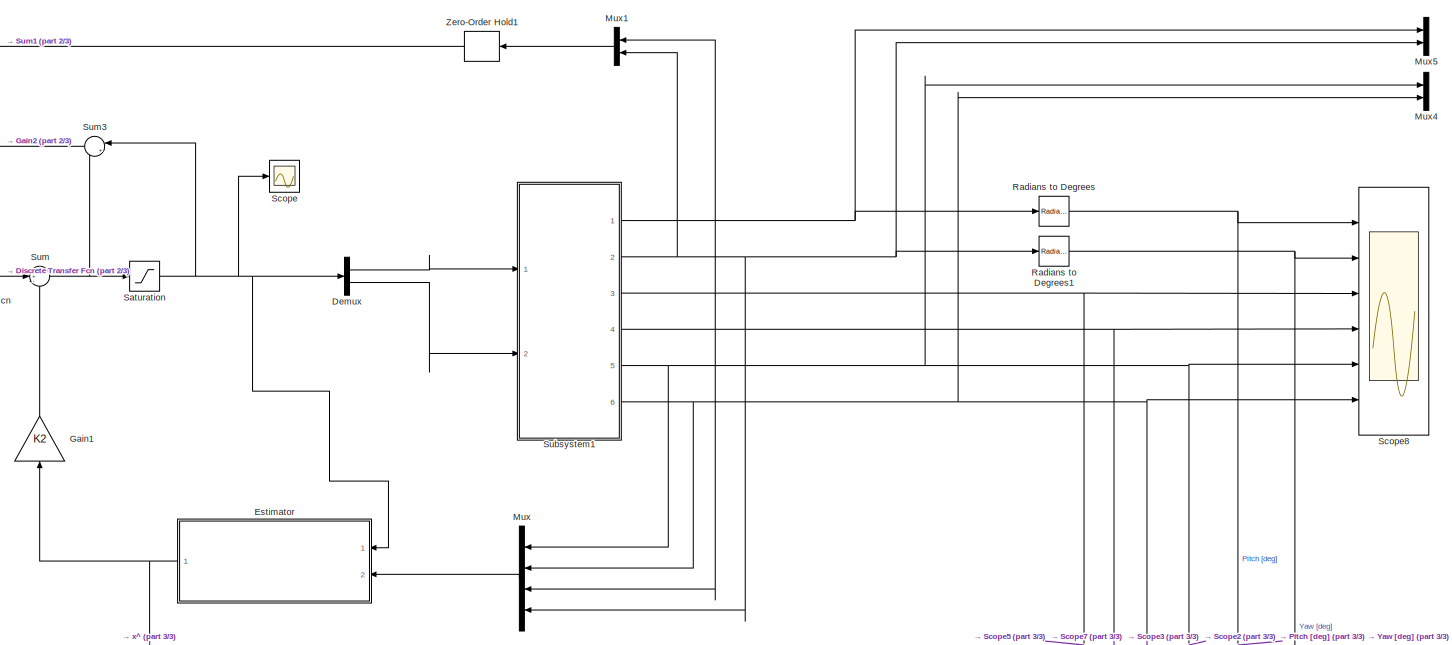
[diagram: root canvas - part 1/3, top center region]
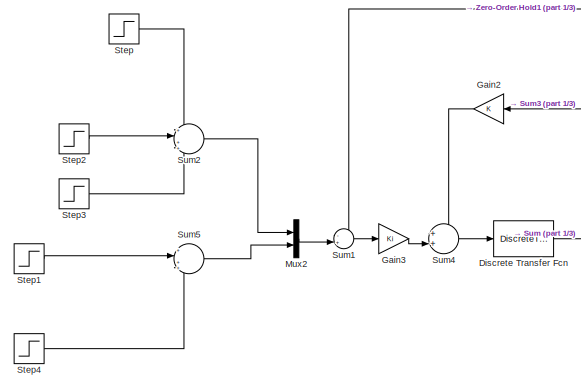
[diagram: root canvas - part 2/3, top left region]
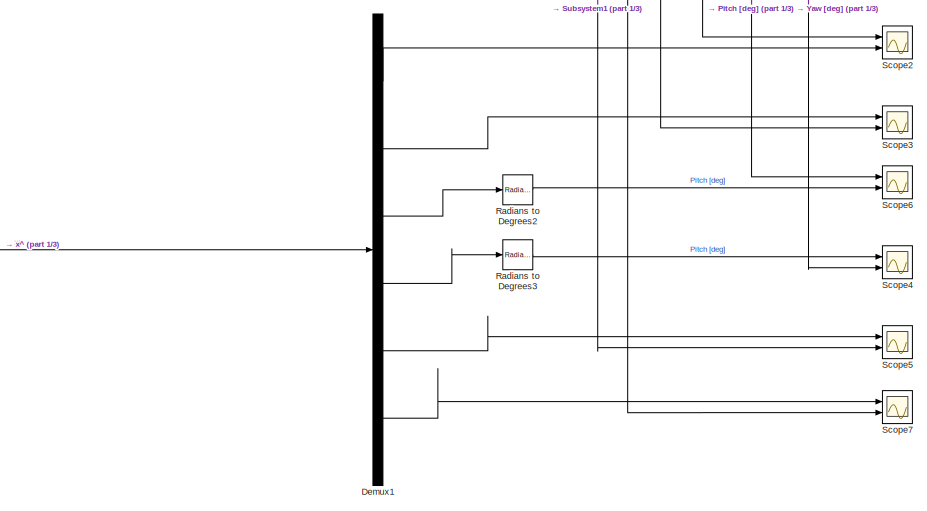
[diagram: root canvas - part 3/3, bottom right region]
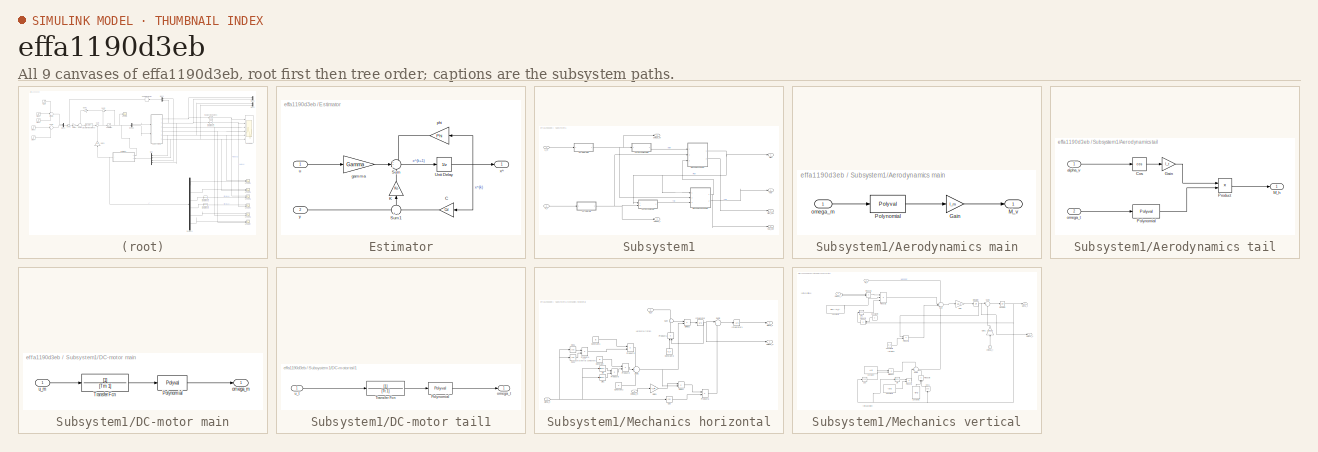
[diagram: thumbnail index - all 9 canvases of the model, root first then tree order]
MODEL slx_effa1190d3eb
KIND model
CONFIG AbsTol = auto
CONFIG EnableMultiTasking = off
CONFIG FixedStep = auto
CONFIG MaxStep = auto
CONFIG MinStep = auto
CONFIG RelTol = 1e-3
CONFIG SampleTimeConstraint = Unconstrained
CONFIG Solver = VariableStepAuto
CONFIG SolverName = VariableStepAuto
CONFIG StartTime = 0.0
CONFIG StopTime = 100
BLOCK [Demux] Demux
  Outputs = 2
  Ports = [1, 2]
BLOCK [Demux] Demux1
  Outputs = 6
  Ports = [1, 6]
BLOCK [DiscreteTransferFcn] Discrete Transfer Fcn
  Denominator = [1 -1]
  InputPortMap = u0
  Ports = [1, 1]
  SampleTime = Ts
BLOCK [SubSystem] Estimator
  Ports = [2, 1]
  RequestExecContextInheritance = off
BLOCK [Gain] Estimator/C
  Gain = Cd
  Multiplication = Matrix(K*u)
  OutDataTypeStr = Inherit: Same as input
  ParamDataTypeStr = Inherit: Same as input
  SaturateOnIntegerOverflow = on
BLOCK [Gain] Estimator/K
  Gain = Ko
  Multiplication = Matrix(K*u)
  OutDataTypeStr = Inherit: Same as input
  ParamDataTypeStr = Inherit: Same as input
  SaturateOnIntegerOverflow = on
BLOCK [Sum] Estimator/Sum
  Inputs = +++
  Ports = [3, 1]
  SaturateOnIntegerOverflow = on
BLOCK [Sum] Estimator/Sum1
  Inputs = +-
  Ports = [2, 1]
  SaturateOnIntegerOverflow = on
BLOCK [UnitDelay] Estimator/Unit Delay
  SampleTime = Ts
BLOCK [Gain] Estimator/gamma
  Gain = Gamma
  Multiplication = Matrix(K*u)
  OutDataTypeStr = Inherit: Same as input
  ParamDataTypeStr = Inherit: Same as input
  SaturateOnIntegerOverflow = on
BLOCK [Gain] Estimator/phi
  Gain = Phi
  Multiplication = Matrix(K*u)
  OutDataTypeStr = Inherit: Same as input
  ParamDataTypeStr = Inherit: Same as input
  SaturateOnIntegerOverflow = on
BLOCK [Inport] Estimator/u
BLOCK [Outport] Estimator/x^
BLOCK [Inport] Estimator/y
  Port = 2
BLOCK [Gain] Gain1
  Gain = K2
  Multiplication = Matrix(K*u) (u vector)
BLOCK [Gain] Gain2
BLOCK [Gain] Gain3
  Gain = Ki
  Multiplication = Matrix(K*u) (u vector)
BLOCK [Mux] Mux
  DisplayOption = bar
  Ports = [4, 1]
BLOCK [Mux] Mux1
  DisplayOption = bar
  Inputs = 2
  Ports = [2, 1]
BLOCK [Mux] Mux2
  DisplayOption = bar
  Inputs = 2
  Ports = [2, 1]
BLOCK [Mux] Mux4
  DisplayOption = bar
  Inputs = 2
  Ports = [2, 1]
BLOCK [Mux] Mux5
  DisplayOption = bar
  Inputs = 2
  Ports = [2, 1]
BLOCK [Reference] Radians to Degrees  REF=simulink_extras/Transformations/Radians
to Degrees
  Ports = [1, 1]
  SourceBlock = simulink_extras/Transformations/Radians\nto Degrees
  SourceProductBaseCode = SL
  SourceType = RadiansToDegrees
BLOCK [Reference] Radians to Degrees1  REF=simulink_extras/Transformations/Radians
to Degrees
  Ports = [1, 1]
  SourceBlock = simulink_extras/Transformations/Radians\nto Degrees
  SourceProductBaseCode = SL
  SourceType = RadiansToDegrees
BLOCK [Reference] Radians to Degrees2  REF=simulink_extras/Transformations/Radians
to Degrees
  Ports = [1, 1]
  SourceBlock = simulink_extras/Transformations/Radians\nto Degrees
  SourceProductBaseCode = SL
  SourceType = RadiansToDegrees
BLOCK [Reference] Radians to Degrees3  REF=simulink_extras/Transformations/Radians
to Degrees
  Ports = [1, 1]
  SourceBlock = simulink_extras/Transformations/Radians\nto Degrees
  SourceProductBaseCode = SL
  SourceType = RadiansToDegrees
BLOCK [Saturate] Saturation
  LowerLimit = -18
  UpperLimit = 18
BLOCK [Scope] Scope
  Floating = off
  NumInputPorts = 1
  Ports = [1]
  ScopeSpecificationString = Simulink.scopes.TimeScopeBlockCfg('CurrentConfiguration', extmgr.ConfigurationSet(extmgr.Configuration('Core','General UI',true),extmgr.Configuration('Core','Source UI',true),extmgr.Configuration('Sources','WiredSimulink',true,'DataLoggingVariableName','ScopeData1'),extmgr.Configuration('Visuals','Time Domain',true,'SerializedDisplays',{struct('MinYLimReal','-22.5','MaxYLimReal','22.5','YLabelReal...<+1368ch>
BLOCK [Scope] Scope2
  Floating = off
  NumInputPorts = 2
  Ports = [2]
  ScopeSpecificationString = Simulink.scopes.TimeScopeBlockCfg('CurrentConfiguration', extmgr.ConfigurationSet(extmgr.Configuration('Core','General UI',true),extmgr.Configuration('Core','Source UI',true),extmgr.Configuration('Sources','WiredSimulink',true,'DataLoggingVariableName','ScopeData1'),extmgr.Configuration('Visuals','Time Domain',true,'SerializedDisplays',{struct('MinYLimReal','-24.75697','MaxYLimReal','222.81269','Y...<+1419ch>
BLOCK [Scope] Scope3
  Floating = off
  NumInputPorts = 2
  Ports = [2]
  ScopeSpecificationString = Simulink.scopes.TimeScopeBlockCfg('CurrentConfiguration', extmgr.ConfigurationSet(extmgr.Configuration('Core','General UI',true),extmgr.Configuration('Core','Source UI',true),extmgr.Configuration('Sources','WiredSimulink',true,'DataLoggingVariableName','ScopeData2'),extmgr.Configuration('Visuals','Time Domain',true,'SerializedDisplays',{struct('MinYLimReal','-33.3837','MaxYLimReal','-8.72178','YLa...<+1430ch>
BLOCK [Scope] Scope4
  Floating = off
  NumInputPorts = 2
  Ports = [2]
  ScopeSpecificationString = Simulink.scopes.TimeScopeBlockCfg('CurrentConfiguration', extmgr.ConfigurationSet(extmgr.Configuration('Core','General UI',true),extmgr.Configuration('Core','Source UI',true),extmgr.Configuration('Sources','WiredSimulink',true,'DataLoggingVariableName','ScopeData3'),extmgr.Configuration('Visuals','Time Domain',true,'SerializedDisplays',{struct('MinYLimReal','-6.02061','MaxYLimReal','54.18546','YLa...<+1413ch>
BLOCK [Scope] Scope5
  Floating = off
  NumInputPorts = 2
  Ports = [2]
  ScopeSpecificationString = Simulink.scopes.TimeScopeBlockCfg('CurrentConfiguration', extmgr.ConfigurationSet(extmgr.Configuration('Core','General UI',true),extmgr.Configuration('Core','Source UI',true),extmgr.Configuration('Sources','WiredSimulink',true,'DataLoggingVariableName','ScopeData4'),extmgr.Configuration('Visuals','Time Domain',true,'SerializedDisplays',{struct('MinYLimReal','-1.17358','MaxYLimReal','4.80429','YLab...<+1409ch>
BLOCK [Scope] Scope6
  Floating = off
  NumInputPorts = 2
  Ports = [2]
  ScopeSpecificationString = Simulink.scopes.TimeScopeBlockCfg('CurrentConfiguration', extmgr.ConfigurationSet(extmgr.Configuration('Core','General UI',true),extmgr.Configuration('Core','Source UI',true),extmgr.Configuration('Sources','WiredSimulink',true,'DataLoggingVariableName','ScopeData5'),extmgr.Configuration('Visuals','Time Domain',true,'SerializedDisplays',{struct('MinYLimReal','-41.98925','MaxYLimReal','4.66547','YLa...<+1415ch>
BLOCK [Scope] Scope7
  Floating = off
  NumInputPorts = 2
  Ports = [2]
  ScopeSpecificationString = Simulink.scopes.TimeScopeBlockCfg('CurrentConfiguration', extmgr.ConfigurationSet(extmgr.Configuration('Core','General UI',true),extmgr.Configuration('Core','Source UI',true),extmgr.Configuration('Sources','WiredSimulink',true,'DataLoggingVariableName','ScopeData6'),extmgr.Configuration('Visuals','Time Domain',true,'SerializedDisplays',{struct('MinYLimReal','-0.17417','MaxYLimReal','0.27056','YLab...<+1409ch>
BLOCK [Scope] Scope8
  Floating = off
  NumInputPorts = 6
  Ports = [6]
  ScopeSpecificationString = Simulink.scopes.TimeScopeBlockCfg('CurrentConfiguration', extmgr.ConfigurationSet(extmgr.Configuration('Core','General UI',true),extmgr.Configuration('Core','Source UI',true),extmgr.Configuration('Sources','WiredSimulink',true,'DataLoggingVariableName','ScopeData2'),extmgr.Configuration('Visuals','Time Domain',true,'SerializedDisplays',{struct('MinYLimReal','-41.00272','MaxYLimReal','-0.99563','YL...<+4979ch>
BLOCK [Step] Step
  After = deg2rad(-5)
  SampleTime = 0
  Time = 0
BLOCK [Step] Step1
  After = deg2rad(45)
  SampleTime = 0
  Time = 0
BLOCK [Step] Step2
  After = deg2rad(-10)
  SampleTime = 0
  Time = 15
BLOCK [Step] Step3
  After = deg2rad(-15)
  SampleTime = 0
  Time = 40
BLOCK [Step] Step4
  After = deg2rad(-10)
  SampleTime = 0
  Time = 30
BLOCK [SubSystem] Subsystem1
  Ports = [2, 6]
  RequestExecContextInheritance = off
BLOCK [SubSystem] Subsystem1/Aerodynamics main
  Ports = [1, 1]
  RequestExecContextInheritance = off
BLOCK [Gain] Subsystem1/Aerodynamics main/Gain
  Gain = l_m
BLOCK [Outport] Subsystem1/Aerodynamics main/M_v
  VectorParamsAs1DForOutWhenUnconnected = off
BLOCK [Polyval] Subsystem1/Aerodynamics main/Polynomial
  Coefs = polynom.MainForce
BLOCK [Inport] Subsystem1/Aerodynamics main/omega_m
BLOCK [SubSystem] Subsystem1/Aerodynamics tail
  Ports = [2, 1]
  RequestExecContextInheritance = off
BLOCK [Trigonometry] Subsystem1/Aerodynamics tail/Cos
  Operator = cos
  Ports = [1, 1]
BLOCK [Gain] Subsystem1/Aerodynamics tail/Gain
  Gain = l_t
BLOCK [Outport] Subsystem1/Aerodynamics tail/M_h
  VectorParamsAs1DForOutWhenUnconnected = off
BLOCK [Polyval] Subsystem1/Aerodynamics tail/Polynomial
  Coefs = polynom.TailForce
BLOCK [Product] Subsystem1/Aerodynamics tail/Product
  Ports = [2, 1]
BLOCK [Inport] Subsystem1/Aerodynamics tail/alpha_v
BLOCK [Inport] Subsystem1/Aerodynamics tail/omega_t
  Port = 2
BLOCK [SubSystem] Subsystem1/DC-motor main
  Ports = [1, 1]
  RequestExecContextInheritance = off
BLOCK [Polyval] Subsystem1/DC-motor main/Polynomial
  Coefs = polynom.MainSpeed
BLOCK [TransferFcn] Subsystem1/DC-motor main/Transfer Fcn
  Denominator = [Tm 1]
BLOCK [Outport] Subsystem1/DC-motor main/omega_m
  VectorParamsAs1DForOutWhenUnconnected = off
BLOCK [Inport] Subsystem1/DC-motor main/u_m
BLOCK [SubSystem] Subsystem1/DC-motor tail1
  Ports = [1, 1]
  RequestExecContextInheritance = off
BLOCK [Polyval] Subsystem1/DC-motor tail1/Polynomial
  Coefs = polynom.TailSpeed
BLOCK [TransferFcn] Subsystem1/DC-motor tail1/Transfer Fcn
  Denominator = [Tt 1]
BLOCK [Outport] Subsystem1/DC-motor tail1/omega_t
  VectorParamsAs1DForOutWhenUnconnected = off
BLOCK [Inport] Subsystem1/DC-motor tail1/u_t
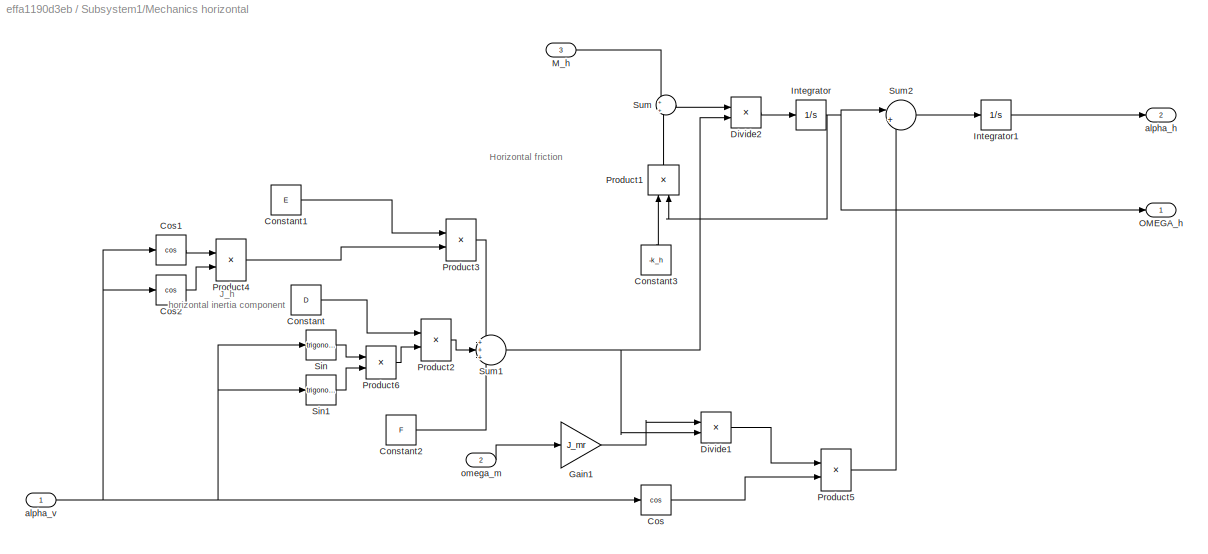
BLOCK [SubSystem] Subsystem1/Mechanics horizontal
  Ports = [3, 2]
  RequestExecContextInheritance = off
BLOCK [Constant] Subsystem1/Mechanics horizontal/Constant
  Value = D
BLOCK [Constant] Subsystem1/Mechanics horizontal/Constant1
  Value = E
BLOCK [Constant] Subsystem1/Mechanics horizontal/Constant2
  Value = F
BLOCK [Constant] Subsystem1/Mechanics horizontal/Constant3
  Value = -k_h
BLOCK [Trigonometry] Subsystem1/Mechanics horizontal/Cos
  Operator = cos
  Ports = [1, 1]
BLOCK [Trigonometry] Subsystem1/Mechanics horizontal/Cos1
  Operator = cos
  Ports = [1, 1]
BLOCK [Trigonometry] Subsystem1/Mechanics horizontal/Cos2
  Operator = cos
  Ports = [1, 1]
BLOCK [Product] Subsystem1/Mechanics horizontal/Divide1
  Inputs = */
  Ports = [2, 1]
BLOCK [Product] Subsystem1/Mechanics horizontal/Divide2
  Inputs = */
  Ports = [2, 1]
BLOCK [Gain] Subsystem1/Mechanics horizontal/Gain1
  Gain = J_mr
BLOCK [Integrator] Subsystem1/Mechanics horizontal/Integrator
  Ports = [1, 1]
BLOCK [Integrator] Subsystem1/Mechanics horizontal/Integrator1
  Ports = [1, 1]
BLOCK [Inport] Subsystem1/Mechanics horizontal/M_h
  Port = 3
BLOCK [Outport] Subsystem1/Mechanics horizontal/OMEGA_h
  VectorParamsAs1DForOutWhenUnconnected = off
BLOCK [Product] Subsystem1/Mechanics horizontal/Product1
  Ports = [2, 1]
BLOCK [Product] Subsystem1/Mechanics horizontal/Product2
  Ports = [2, 1]
BLOCK [Product] Subsystem1/Mechanics horizontal/Product3
  Ports = [2, 1]
BLOCK [Product] Subsystem1/Mechanics horizontal/Product4
  Ports = [2, 1]
BLOCK [Product] Subsystem1/Mechanics horizontal/Product5
  Ports = [2, 1]
BLOCK [Product] Subsystem1/Mechanics horizontal/Product6
  Ports = [2, 1]
BLOCK [Trigonometry] Subsystem1/Mechanics horizontal/Sin
  Ports = [1, 1]
BLOCK [Trigonometry] Subsystem1/Mechanics horizontal/Sin1
  Ports = [1, 1]
BLOCK [Sum] Subsystem1/Mechanics horizontal/Sum
  Inputs = +|+
  Ports = [2, 1]
BLOCK [Sum] Subsystem1/Mechanics horizontal/Sum1
  Inputs = +++
  Ports = [3, 1]
BLOCK [Sum] Subsystem1/Mechanics horizontal/Sum2
  Inputs = |++
  Ports = [2, 1]
BLOCK [Outport] Subsystem1/Mechanics horizontal/alpha_h
  Port = 2
  VectorParamsAs1DForOutWhenUnconnected = off
BLOCK [Inport] Subsystem1/Mechanics horizontal/alpha_v
BLOCK [Inport] Subsystem1/Mechanics horizontal/omega_m
  Port = 2
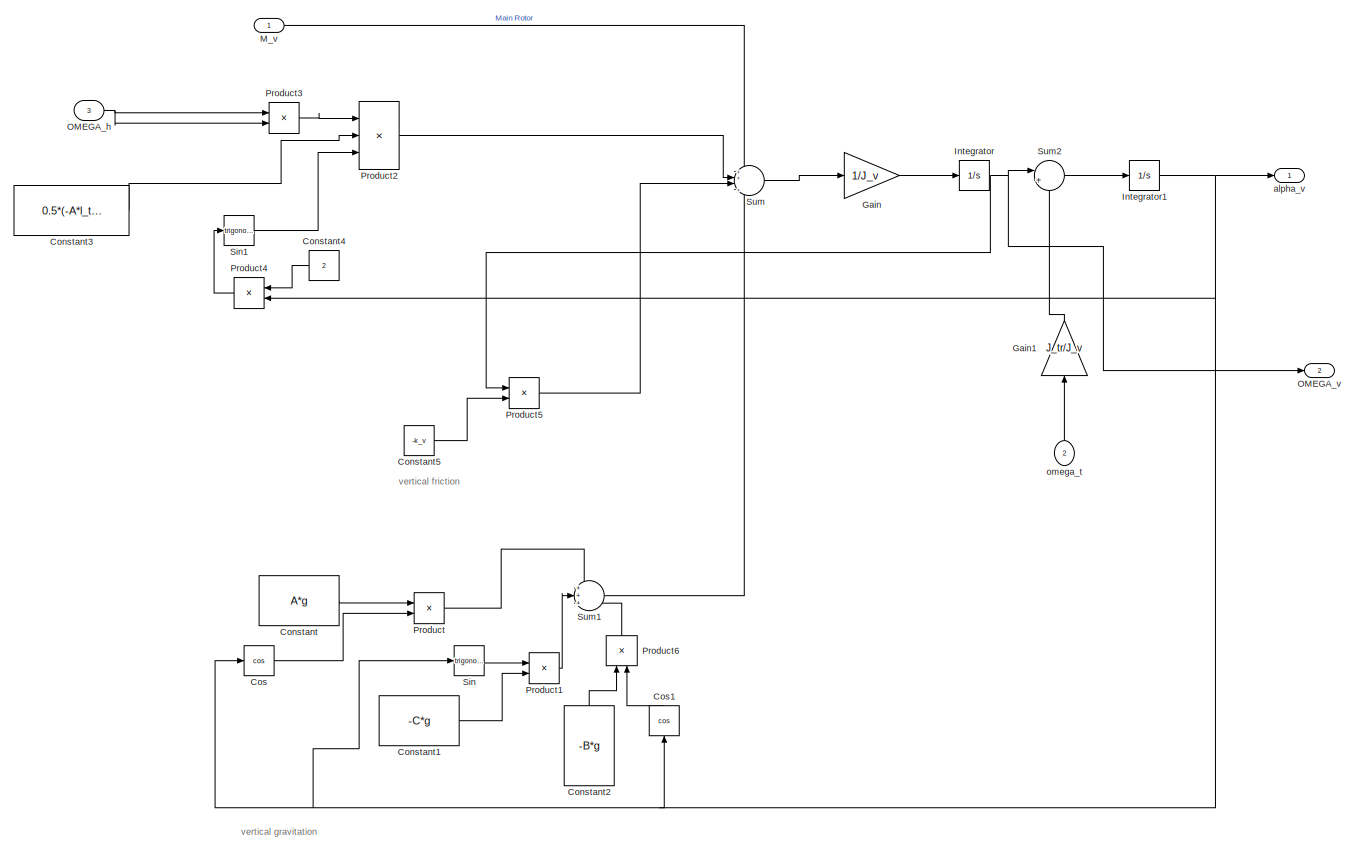
[diagram: Subsystem1/Mechanics vertical - part 1/2, most of the canvas]
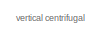
[diagram: Subsystem1/Mechanics vertical - part 2/2, top left region]
BLOCK [SubSystem] Subsystem1/Mechanics vertical
  Ports = [3, 2]
  RequestExecContextInheritance = off
BLOCK [Constant] Subsystem1/Mechanics vertical/Constant
  Value = A*g
BLOCK [Constant] Subsystem1/Mechanics vertical/Constant1
  Value = -C*g
BLOCK [Constant] Subsystem1/Mechanics vertical/Constant2
  Value = -B*g
BLOCK [Constant] Subsystem1/Mechanics vertical/Constant3
  Value = 0.5*(-A*l_t-B*l_m+C*l_b)
BLOCK [Constant] Subsystem1/Mechanics vertical/Constant4
  Value = 2
BLOCK [Constant] Subsystem1/Mechanics vertical/Constant5
  Value = -k_v
BLOCK [Trigonometry] Subsystem1/Mechanics vertical/Cos
  Operator = cos
  Ports = [1, 1]
BLOCK [Trigonometry] Subsystem1/Mechanics vertical/Cos1
  Operator = cos
  Ports = [1, 1]
BLOCK [Gain] Subsystem1/Mechanics vertical/Gain
  Gain = 1/J_v
BLOCK [Gain] Subsystem1/Mechanics vertical/Gain1
  Gain = J_tr/J_v
BLOCK [Integrator] Subsystem1/Mechanics vertical/Integrator
  Ports = [1, 1]
BLOCK [Integrator] Subsystem1/Mechanics vertical/Integrator1
  InitialCondition = deg2rad(-37)
  Ports = [1, 1]
BLOCK [Inport] Subsystem1/Mechanics vertical/M_v
BLOCK [Inport] Subsystem1/Mechanics vertical/OMEGA_h
  Port = 3
BLOCK [Outport] Subsystem1/Mechanics vertical/OMEGA_v
  Port = 2
  VectorParamsAs1DForOutWhenUnconnected = off
BLOCK [Product] Subsystem1/Mechanics vertical/Product
  Ports = [2, 1]
BLOCK [Product] Subsystem1/Mechanics vertical/Product1
  Ports = [2, 1]
BLOCK [Product] Subsystem1/Mechanics vertical/Product2
  Inputs = 3
  Ports = [3, 1]
BLOCK [Product] Subsystem1/Mechanics vertical/Product3
  Ports = [2, 1]
BLOCK [Product] Subsystem1/Mechanics vertical/Product4
  Ports = [2, 1]
BLOCK [Product] Subsystem1/Mechanics vertical/Product5
  Ports = [2, 1]
BLOCK [Product] Subsystem1/Mechanics vertical/Product6
  Ports = [2, 1]
BLOCK [Trigonometry] Subsystem1/Mechanics vertical/Sin
  Ports = [1, 1]
BLOCK [Trigonometry] Subsystem1/Mechanics vertical/Sin1
  Ports = [1, 1]
BLOCK [Sum] Subsystem1/Mechanics vertical/Sum
  Inputs = ++|++
  Ports = [4, 1]
BLOCK [Sum] Subsystem1/Mechanics vertical/Sum1
  Inputs = +++
  Ports = [3, 1]
BLOCK [Sum] Subsystem1/Mechanics vertical/Sum2
  Inputs = |++
  Ports = [2, 1]
BLOCK [Outport] Subsystem1/Mechanics vertical/alpha_v
  VectorParamsAs1DForOutWhenUnconnected = off
BLOCK [Inport] Subsystem1/Mechanics vertical/omega_t
  Port = 2
BLOCK [Outport] Subsystem1/Pitch
BLOCK [Outport] Subsystem1/Pitch_dot
  Port = 3
BLOCK [Outport] Subsystem1/Yaw
  Port = 2
BLOCK [Outport] Subsystem1/Yaw_dot
  Port = 4
BLOCK [Outport] Subsystem1/omega_m
  Port = 5
BLOCK [Outport] Subsystem1/omega_t
  Port = 6
BLOCK [Inport] Subsystem1/u_m
BLOCK [Inport] Subsystem1/u_t
  Port = 2
BLOCK [Sum] Sum
  Inputs = ++-
  Ports = [3, 1]
BLOCK [Sum] Sum1
  Inputs = -+|
  Ports = [2, 1]
BLOCK [Sum] Sum2
  Inputs = +|+++
  Ports = [4, 1]
BLOCK [Sum] Sum3
  Inputs = |+-
  Ports = [2, 1]
BLOCK [Sum] Sum4
  Inputs = ++|
  Ports = [2, 1]
BLOCK [Sum] Sum5
  Inputs = +|+++
  Ports = [4, 1]
BLOCK [ZeroOrderHold] Zero-Order Hold1
  SampleTime = Ts
ANNOTATION Subsystem1/Mechanics horizontal: Horizontal friction
ANNOTATION Subsystem1/Mechanics horizontal: J_h horizontal inertia component
ANNOTATION Subsystem1/Mechanics vertical: vertical centrifugal
ANNOTATION Subsystem1/Mechanics vertical: vertical friction
ANNOTATION Subsystem1/Mechanics vertical: vertical gravitation
LINE Demux1:1 -> Scope2:2
LINE Demux1:2 -> Scope3:1
LINE Demux1:3 -> Radians to Degrees2:1
LINE Demux1:4 -> Radians to Degrees3:1
LINE Demux1:5 -> Scope5:1
LINE Demux1:6 -> Scope7:1
LINE Demux:1 -> Subsystem1:1
LINE Demux:2 -> Subsystem1:2
LINE Discrete Transfer Fcn:1 -> Sum:2
LINE Estimator/C:1 -> Estimator/Sum1:2
LINE Estimator/K:1 -> Estimator/Sum:3
LINE Estimator/Sum1:1 -> Estimator/K:1
LINE Estimator/Sum:1 -> Estimator/Unit Delay:1
NET Estimator/Unit Delay:1 -> Estimator/C:1, Estimator/phi:1, Estimator/x^:1
LINE Estimator/gamma:1 -> Estimator/Sum:2
LINE Estimator/phi:1 -> Estimator/Sum:1
LINE Estimator/u:1 -> Estimator/gamma:1
LINE Estimator/y:1 -> Estimator/Sum1:1
NET Estimator:1 -> Demux1:1, Gain1:1
LINE Gain1:1 -> Sum:3
LINE Gain2:1 -> Sum4:1
LINE Gain3:1 -> Sum4:2
LINE Mux1:1 -> Zero-Order Hold1:1
LINE Mux2:1 -> Sum1:2
LINE Mux:1 -> Estimator:2
NET Radians to Degrees1:1 -> Scope4:2, Scope8:2
LINE Radians to Degrees2:1 -> Scope6:2
LINE Radians to Degrees3:1 -> Scope4:1
NET Radians to Degrees:1 -> Scope6:1, Scope8:1
NET Saturation:1 -> Demux:1, Estimator:1, Scope:1, Sum3:1
LINE Step1:1 -> Sum5:2
LINE Step2:1 -> Sum2:2
LINE Step3:1 -> Sum2:4
LINE Step4:1 -> Sum5:4
LINE Step:1 -> Sum2:1
LINE Subsystem1/Aerodynamics main/Gain:1 -> Subsystem1/Aerodynamics main/M_v:1
LINE Subsystem1/Aerodynamics main/Polynomial:1 -> Subsystem1/Aerodynamics main/Gain:1
LINE Subsystem1/Aerodynamics main/omega_m:1 -> Subsystem1/Aerodynamics main/Polynomial:1
LINE Subsystem1/Aerodynamics main:1 -> Subsystem1/Mechanics vertical:1
LINE Subsystem1/Aerodynamics tail/Cos:1 -> Subsystem1/Aerodynamics tail/Gain:1
LINE Subsystem1/Aerodynamics tail/Gain:1 -> Subsystem1/Aerodynamics tail/Product:1
LINE Subsystem1/Aerodynamics tail/Polynomial:1 -> Subsystem1/Aerodynamics tail/Product:2
LINE Subsystem1/Aerodynamics tail/Product:1 -> Subsystem1/Aerodynamics tail/M_h:1
LINE Subsystem1/Aerodynamics tail/alpha_v:1 -> Subsystem1/Aerodynamics tail/Cos:1
LINE Subsystem1/Aerodynamics tail/omega_t:1 -> Subsystem1/Aerodynamics tail/Polynomial:1
LINE Subsystem1/Aerodynamics tail:1 -> Subsystem1/Mechanics horizontal:3
LINE Subsystem1/DC-motor main/Polynomial:1 -> Subsystem1/DC-motor main/omega_m:1
LINE Subsystem1/DC-motor main/Transfer Fcn:1 -> Subsystem1/DC-motor main/Polynomial:1
LINE Subsystem1/DC-motor main/u_m:1 -> Subsystem1/DC-motor main/Transfer Fcn:1
NET Subsystem1/DC-motor main:1 -> Subsystem1/Aerodynamics main:1, Subsystem1/Mechanics horizontal:2, Subsystem1/omega_m:1
LINE Subsystem1/DC-motor tail1/Polynomial:1 -> Subsystem1/DC-motor tail1/omega_t:1
LINE Subsystem1/DC-motor tail1/Transfer Fcn:1 -> Subsystem1/DC-motor tail1/Polynomial:1
LINE Subsystem1/DC-motor tail1/u_t:1 -> Subsystem1/DC-motor tail1/Transfer Fcn:1
NET Subsystem1/DC-motor tail1:1 -> Subsystem1/Aerodynamics tail:2, Subsystem1/Mechanics vertical:2, Subsystem1/omega_t:1
LINE Subsystem1/Mechanics horizontal/Constant1:1 -> Subsystem1/Mechanics horizontal/Product3:1
LINE Subsystem1/Mechanics horizontal/Constant2:1 -> Subsystem1/Mechanics horizontal/Sum1:3
LINE Subsystem1/Mechanics horizontal/Constant3:1 -> Subsystem1/Mechanics horizontal/Product1:1
LINE Subsystem1/Mechanics horizontal/Constant:1 -> Subsystem1/Mechanics horizontal/Product2:1
LINE Subsystem1/Mechanics horizontal/Cos1:1 -> Subsystem1/Mechanics horizontal/Product4:1
LINE Subsystem1/Mechanics horizontal/Cos2:1 -> Subsystem1/Mechanics horizontal/Product4:2
LINE Subsystem1/Mechanics horizontal/Cos:1 -> Subsystem1/Mechanics horizontal/Product5:2
LINE Subsystem1/Mechanics horizontal/Divide1:1 -> Subsystem1/Mechanics horizontal/Product5:1
LINE Subsystem1/Mechanics horizontal/Divide2:1 -> Subsystem1/Mechanics horizontal/Integrator:1
LINE Subsystem1/Mechanics horizontal/Gain1:1 -> Subsystem1/Mechanics horizontal/Divide1:1
LINE Subsystem1/Mechanics horizontal/Integrator1:1 -> Subsystem1/Mechanics horizontal/alpha_h:1
NET Subsystem1/Mechanics horizontal/Integrator:1 -> Subsystem1/Mechanics horizontal/OMEGA_h:1, Subsystem1/Mechanics horizontal/Product1:2, Subsystem1/Mechanics horizontal/Sum2:1
LINE Subsystem1/Mechanics horizontal/M_h:1 -> Subsystem1/Mechanics horizontal/Sum:1
LINE Subsystem1/Mechanics horizontal/Product1:1 -> Subsystem1/Mechanics horizontal/Sum:2
LINE Subsystem1/Mechanics horizontal/Product2:1 -> Subsystem1/Mechanics horizontal/Sum1:2
LINE Subsystem1/Mechanics horizontal/Product3:1 -> Subsystem1/Mechanics horizontal/Sum1:1
LINE Subsystem1/Mechanics horizontal/Product4:1 -> Subsystem1/Mechanics horizontal/Product3:2
LINE Subsystem1/Mechanics horizontal/Product5:1 -> Subsystem1/Mechanics horizontal/Sum2:2
LINE Subsystem1/Mechanics horizontal/Product6:1 -> Subsystem1/Mechanics horizontal/Product2:2
LINE Subsystem1/Mechanics horizontal/Sin1:1 -> Subsystem1/Mechanics horizontal/Product6:2
LINE Subsystem1/Mechanics horizontal/Sin:1 -> Subsystem1/Mechanics horizontal/Product6:1
NET Subsystem1/Mechanics horizontal/Sum1:1 -> Subsystem1/Mechanics horizontal/Divide1:2, Subsystem1/Mechanics horizontal/Divide2:2
LINE Subsystem1/Mechanics horizontal/Sum2:1 -> Subsystem1/Mechanics horizontal/Integrator1:1
LINE Subsystem1/Mechanics horizontal/Sum:1 -> Subsystem1/Mechanics horizontal/Divide2:1
NET Subsystem1/Mechanics horizontal/alpha_v:1 -> Subsystem1/Mechanics horizontal/Cos1:1, Subsystem1/Mechanics horizontal/Cos2:1, Subsystem1/Mechanics horizontal/Cos:1, Subsystem1/Mechanics horizontal/Sin1:1, Subsystem1/Mechanics horizontal/Sin:1
LINE Subsystem1/Mechanics horizontal/omega_m:1 -> Subsystem1/Mechanics horizontal/Gain1:1
NET Subsystem1/Mechanics horizontal:1 -> Subsystem1/Mechanics vertical:3, Subsystem1/Yaw_dot:1
LINE Subsystem1/Mechanics horizontal:2 -> Subsystem1/Yaw:1
LINE Subsystem1/Mechanics vertical/Constant1:1 -> Subsystem1/Mechanics vertical/Product1:2
LINE Subsystem1/Mechanics vertical/Constant2:1 -> Subsystem1/Mechanics vertical/Product6:1
LINE Subsystem1/Mechanics vertical/Constant3:1 -> Subsystem1/Mechanics vertical/Product2:2
LINE Subsystem1/Mechanics vertical/Constant4:1 -> Subsystem1/Mechanics vertical/Product4:1
LINE Subsystem1/Mechanics vertical/Constant5:1 -> Subsystem1/Mechanics vertical/Product5:2
LINE Subsystem1/Mechanics vertical/Constant:1 -> Subsystem1/Mechanics vertical/Product:1
LINE Subsystem1/Mechanics vertical/Cos1:1 -> Subsystem1/Mechanics vertical/Product6:2
LINE Subsystem1/Mechanics vertical/Cos:1 -> Subsystem1/Mechanics vertical/Product:2
LINE Subsystem1/Mechanics vertical/Gain1:1 -> Subsystem1/Mechanics vertical/Sum2:2
LINE Subsystem1/Mechanics vertical/Gain:1 -> Subsystem1/Mechanics vertical/Integrator:1
NET Subsystem1/Mechanics vertical/Integrator1:1 -> Subsystem1/Mechanics vertical/Cos1:1, Subsystem1/Mechanics vertical/Cos:1, Subsystem1/Mechanics vertical/Product4:2, Subsystem1/Mechanics vertical/Sin:1, Subsystem1/Mechanics vertical/alpha_v:1
NET Subsystem1/Mechanics vertical/Integrator:1 -> Subsystem1/Mechanics vertical/OMEGA_v:1, Subsystem1/Mechanics vertical/Product5:1, Subsystem1/Mechanics vertical/Sum2:1
LINE Subsystem1/Mechanics vertical/M_v:1 -> Subsystem1/Mechanics vertical/Sum:1
NET Subsystem1/Mechanics vertical/OMEGA_h:1 -> Subsystem1/Mechanics vertical/Product3:1, Subsystem1/Mechanics vertical/Product3:2
LINE Subsystem1/Mechanics vertical/Product1:1 -> Subsystem1/Mechanics vertical/Sum1:2
LINE Subsystem1/Mechanics vertical/Product2:1 -> Subsystem1/Mechanics vertical/Sum:2
LINE Subsystem1/Mechanics vertical/Product3:1 -> Subsystem1/Mechanics vertical/Product2:1
LINE Subsystem1/Mechanics vertical/Product4:1 -> Subsystem1/Mechanics vertical/Sin1:1
LINE Subsystem1/Mechanics vertical/Product5:1 -> Subsystem1/Mechanics vertical/Sum:3
LINE Subsystem1/Mechanics vertical/Product6:1 -> Subsystem1/Mechanics vertical/Sum1:3
LINE Subsystem1/Mechanics vertical/Product:1 -> Subsystem1/Mechanics vertical/Sum1:1
LINE Subsystem1/Mechanics vertical/Sin1:1 -> Subsystem1/Mechanics vertical/Product2:3
LINE Subsystem1/Mechanics vertical/Sin:1 -> Subsystem1/Mechanics vertical/Product1:1
LINE Subsystem1/Mechanics vertical/Sum1:1 -> Subsystem1/Mechanics vertical/Sum:4
LINE Subsystem1/Mechanics vertical/Sum2:1 -> Subsystem1/Mechanics vertical/Integrator1:1
LINE Subsystem1/Mechanics vertical/Sum:1 -> Subsystem1/Mechanics vertical/Gain:1
LINE Subsystem1/Mechanics vertical/omega_t:1 -> Subsystem1/Mechanics vertical/Gain1:1
NET Subsystem1/Mechanics vertical:1 -> Subsystem1/Aerodynamics tail:1, Subsystem1/Mechanics horizontal:1, Subsystem1/Pitch:1
LINE Subsystem1/Mechanics vertical:2 -> Subsystem1/Pitch_dot:1
LINE Subsystem1/u_m:1 -> Subsystem1/DC-motor main:1
LINE Subsystem1/u_t:1 -> Subsystem1/DC-motor tail1:1
NET Subsystem1:1 -> Mux1:1, Mux5:1, Mux:3, Radians to Degrees:1
NET Subsystem1:2 -> Mux1:2, Mux5:2, Mux:4, Radians to Degrees1:1
NET Subsystem1:3 -> Scope5:2, Scope8:3
NET Subsystem1:4 -> Scope7:2, Scope8:4
NET Subsystem1:5 -> Mux4:1, Mux:1, Scope2:1, Scope8:5
NET Subsystem1:6 -> Mux4:2, Mux:2, Scope3:2, Scope8:6
LINE Sum1:1 -> Gain3:1
LINE Sum2:1 -> Mux2:1
LINE Sum3:1 -> Gain2:1
LINE Sum4:1 -> Discrete Transfer Fcn:1
LINE Sum5:1 -> Mux2:2
NET Sum:1 -> Saturation:1, Sum3:2
LINE Zero-Order Hold1:1 -> Sum1:1
note: NET lines group one-source signal fan-out (src -> all destinations, sorted); 1:1 wires keep LINE
